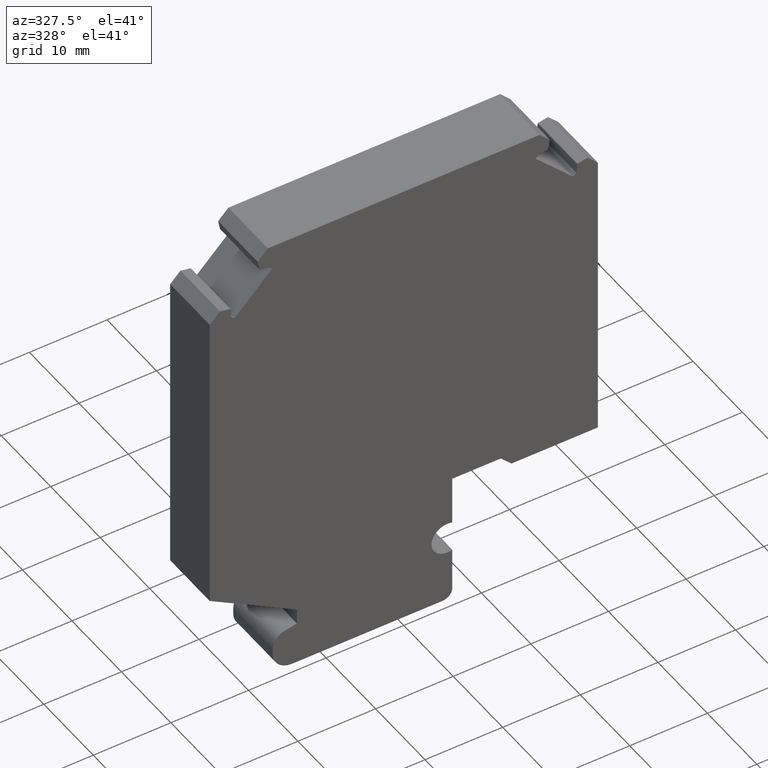
[diagram: clean part render]
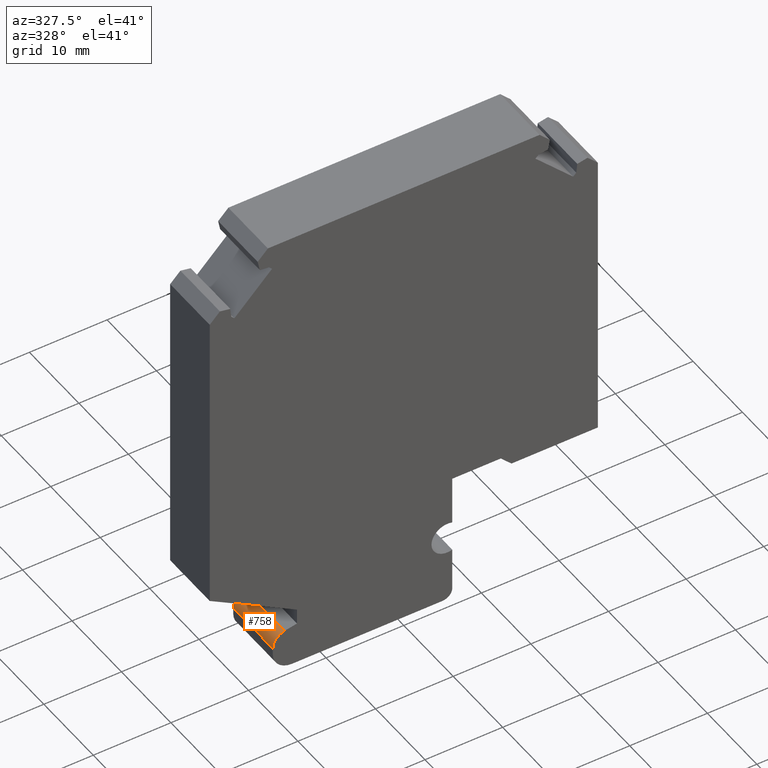
[diagram: same view with one face highlighted and labeled with its STEP entity id]
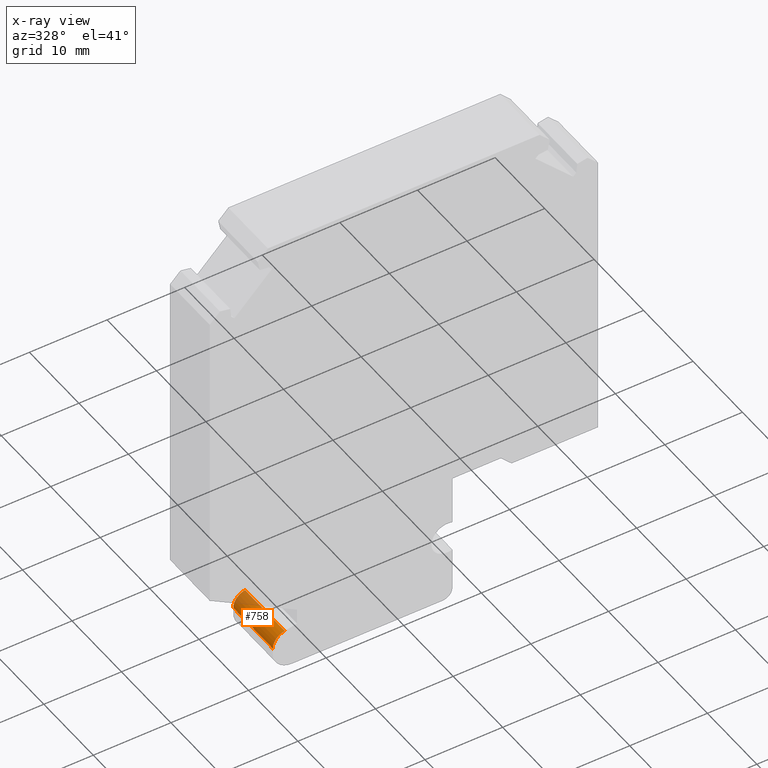
[diagram: x-ray of the same camera — body ghosted, the highlighted face saturated]
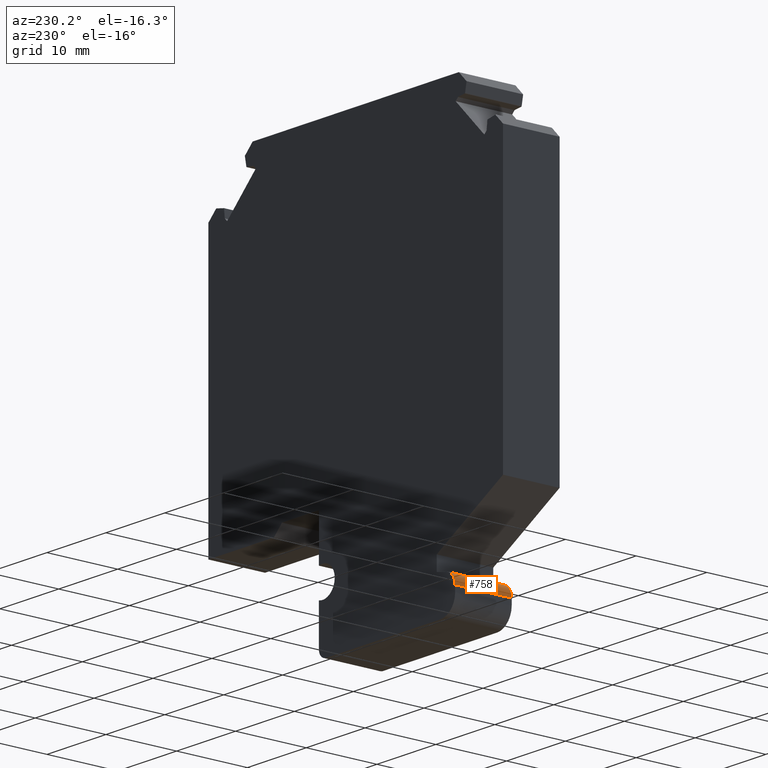
[diagram: same view with one face highlighted and labeled with its STEP entity id]
A machine part, auxiliary view. The second image highlights one B-rep face of the part: STEP entity #758.
The next image is the same camera in x-ray: the body ghosted, the highlighted face saturated — about 17% of this face is hidden behind the body in this view.
A second angle (auxiliary view) of the same face is appended — the face is thin or edge-on in the first view.
In plain terms, the highlighted cylindrical surface (edge-blend (fillet) strip) has radius 1.875 mm, axis along (0, -1, 0).
Its self-contained STEP definition (entity closure, byte-faithful):
#26=CIRCLE('',#816,1.87500000000003);
#27=CIRCLE('',#817,1.87500000000003);
#33=CYLINDRICAL_SURFACE('',#815,1.87500000000003);
#123=ORIENTED_EDGE('',*,*,#318,.T.);
#124=ORIENTED_EDGE('',*,*,#319,.F.);
#125=ORIENTED_EDGE('',*,*,#320,.F.);
#126=ORIENTED_EDGE('',*,*,#316,.T.);
#316=EDGE_CURVE('',#404,#403,#490,.T.);
#318=EDGE_CURVE('',#403,#405,#26,.T.);
#319=EDGE_CURVE('',#406,#405,#492,.T.);
#320=EDGE_CURVE('',#404,#406,#27,.T.);
#403=VERTEX_POINT('',#1163);
#404=VERTEX_POINT('',#1165);
#405=VERTEX_POINT('',#1169);
#406=VERTEX_POINT('',#1171);
#490=LINE('',#1164,#588);
#492=LINE('',#1170,#590);
#588=VECTOR('',#952,1000.);
#590=VECTOR('',#958,1000.);
#649=EDGE_LOOP('',(#123,#124,#125,#126));
#687=FACE_BOUND('',#649,.T.);
#758=ADVANCED_FACE('',(#687),#33,.T.);
#815=AXIS2_PLACEMENT_3D('',#1167,#954,#955);
#816=AXIS2_PLACEMENT_3D('',#1168,#956,#957);
#817=AXIS2_PLACEMENT_3D('',#1172,#959,#960);
#952=DIRECTION('',(0.,-1.,0.));
#954=DIRECTION('',(0.,-1.,0.));
#955=DIRECTION('',(0.,0.,-1.));
#956=DIRECTION('',(0.,1.,0.));
#957=DIRECTION('',(1.,0.,0.));
#958=DIRECTION('',(0.,-1.,0.));
#959=DIRECTION('',(0.,1.,0.));
#960=DIRECTION('',(1.,0.,0.));
#1163=CARTESIAN_POINT('',(-16.8750000000002,0.,-28.2807681626243));
#1164=CARTESIAN_POINT('',(-16.8750000000002,8.,-28.2807681626243));
#1165=CARTESIAN_POINT('',(-16.8750000000002,8.,-28.2807681626243));
#1167=CARTESIAN_POINT('',(-15.0000000000001,8.,-28.2807681626243));
#1168=CARTESIAN_POINT('',(-15.0000000000001,0.,-28.2807681626243));
#1169=CARTESIAN_POINT('',(-15.3577668663312,0.,-26.4402171936599));
#1170=CARTESIAN_POINT('',(-15.3577668663312,8.,-26.4402171936599));
#1171=CARTESIAN_POINT('',(-15.3577668663312,8.,-26.4402171936599));
#1172=CARTESIAN_POINT('',(-15.0000000000001,8.,-28.2807681626243));